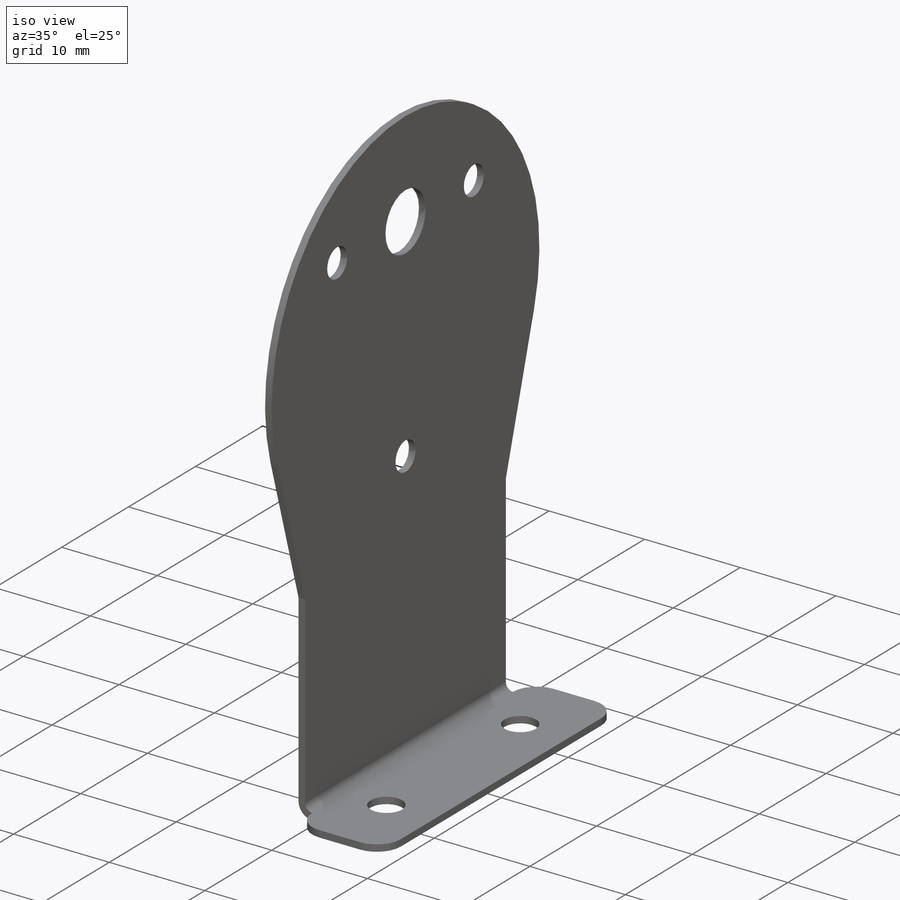
[diagram: iso view]
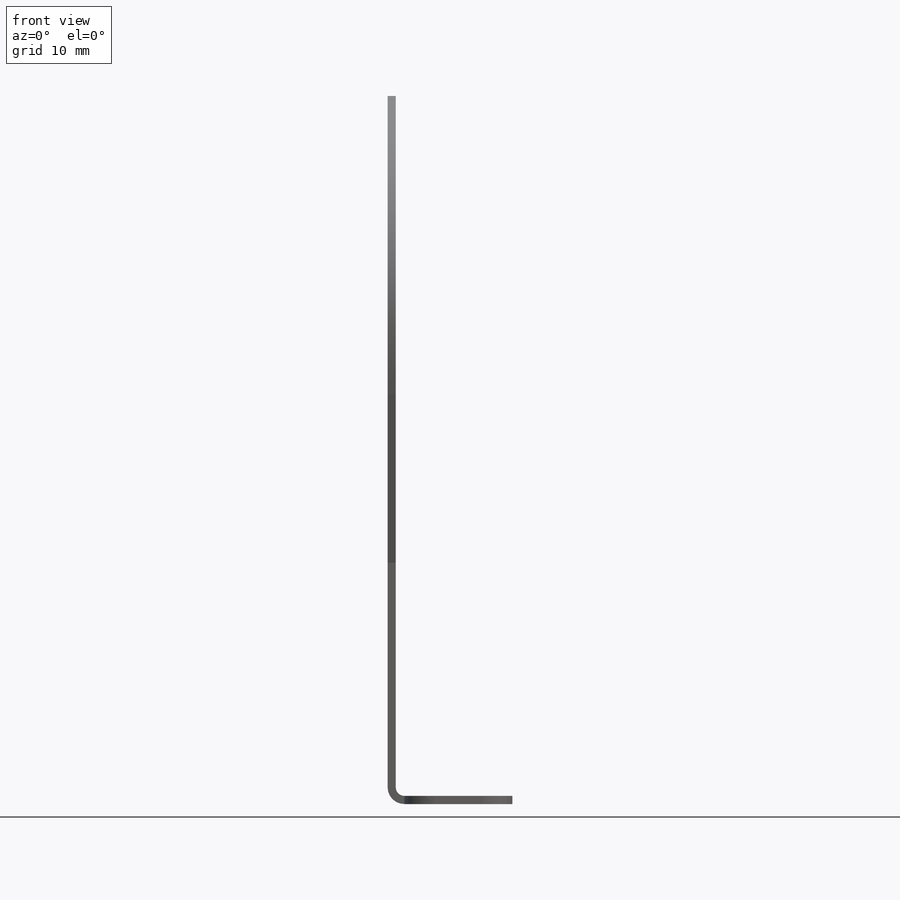
[diagram: front view]
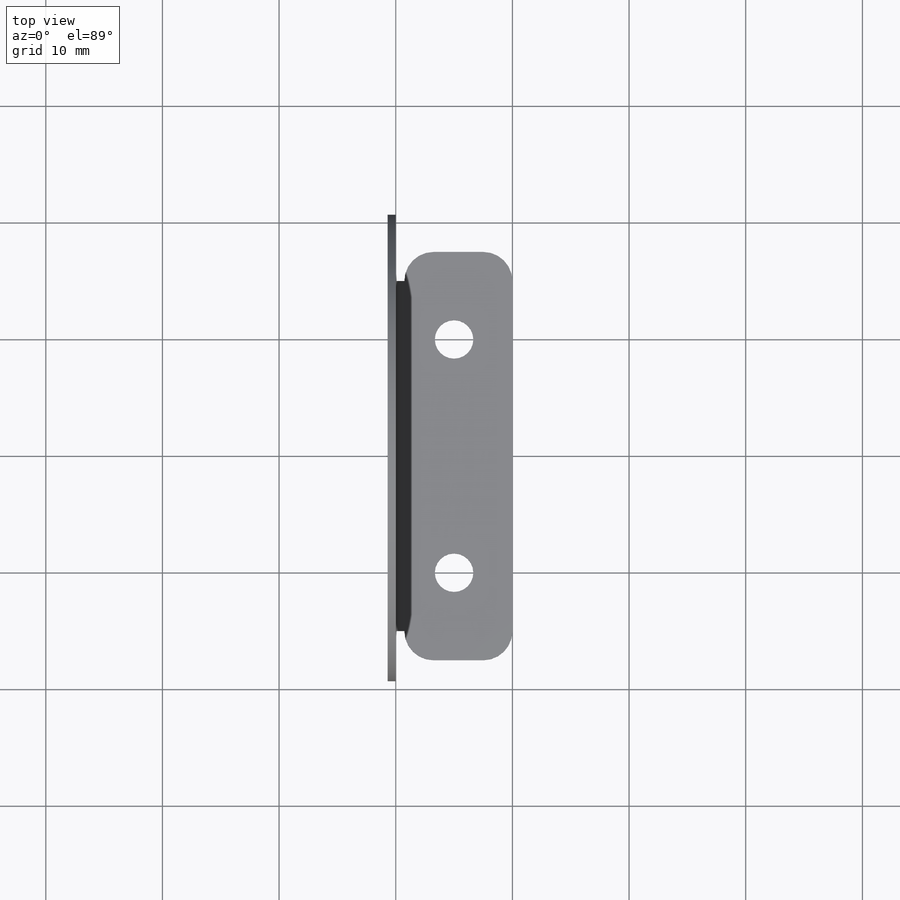
[diagram: top view]
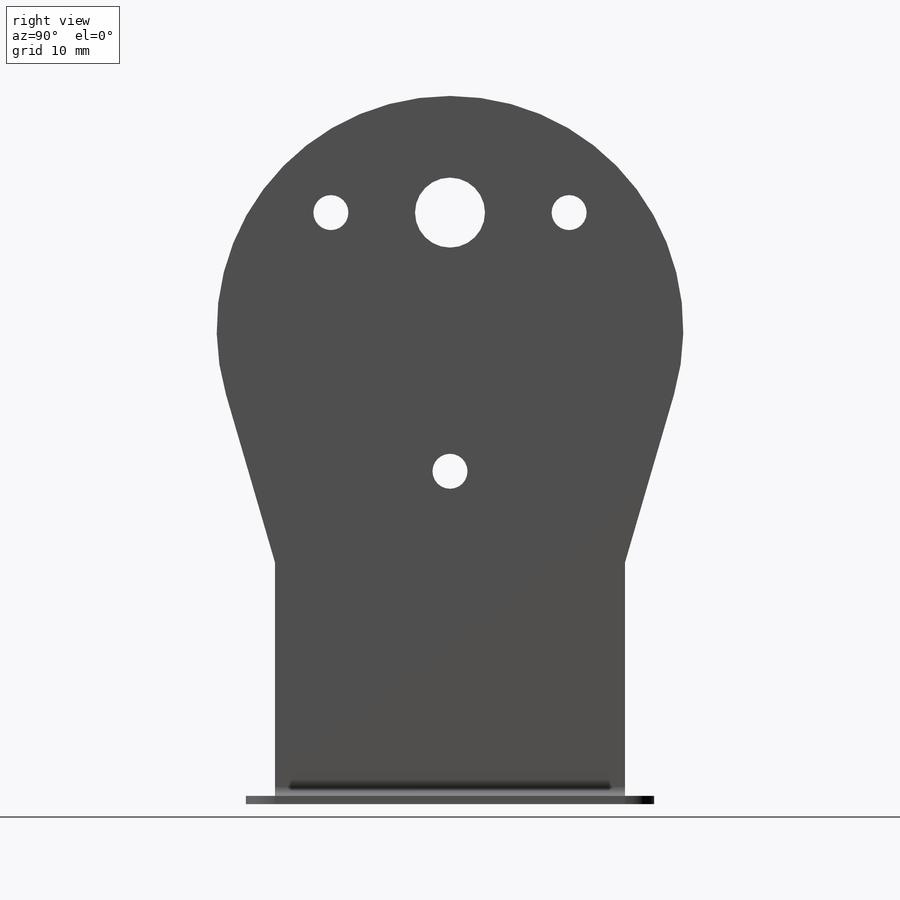
[diagram: right view]
SOLIDWORKS PART (.sldprt)
format: sldprt  version: not decoded by parser v0  size: 262,656 bytes
history: native  units: mm
features: sketch x7, sheet_metal_op x3, cut_extrude x2, material x1, mirror x1 + 1 further entry (+11 scaffold rows collapsed; 1 parser-record rows omitted)
feature tree (27):
  scaffold x11  (default folders/planes/origin — collapsed)
  material  "6061 Alloy"
  sketch  "Sketch1"  dims[D2=40.0mm D1=30.0mm D3=20.0mm D4=20.0mm]
  sheet_metal_op  "Sheet-Metal1"
  sheet_metal_op  "Base-Flange1"
  sketch  "Sketch4"  dims[D2=3.0mm D3=3.0mm D4=6.0mm D7=3.0mm D1=20.4216mm D5=10.0mm D6=22.1742mm]
  cut_extrude  "Cut-Extrude1"  Depth=0.7366mm
  sketch  "Sketch9"  dims[D1=0.7366mm D2=500.0mm D3=0.0mm D6=10.0mm D7=10.7mm]
  sketch  "Sketch11"  dims[D1=2.5mm]
  sheet_metal_op  "Tab1"
  mirror  "Mirror1"
  sketch  "Sketch10"  dims[D2=3.3mm D1=20.0mm]
  cut_extrude  "Cut-Extrude2"  Depth=2.5mm
  "Flat-Pattern1"
  sketch  "Bend-Lines1"
  sketch  "Bounding-Box1"
  parser-record x1  (decoder bookkeeping rows leaked as tree rows — omitted from the tree; the rows remain in map.json)
decode coverage: 7 of 13 modeling features carry decoded parameters; 1 rows unclassified (native names shown)
note: suppression state not decoded; provenance and decode notes live in map.json
